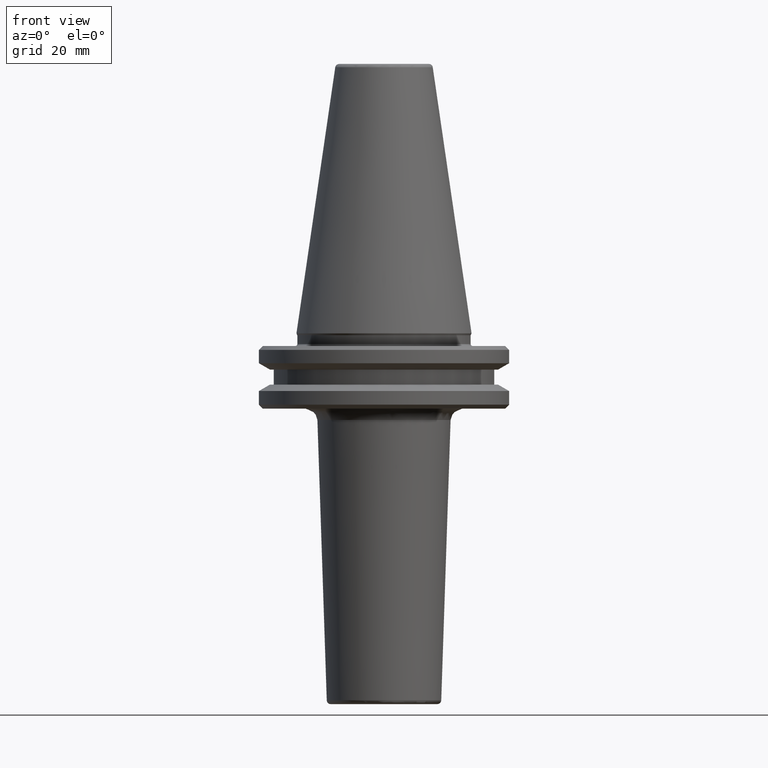
[diagram: clean part render]
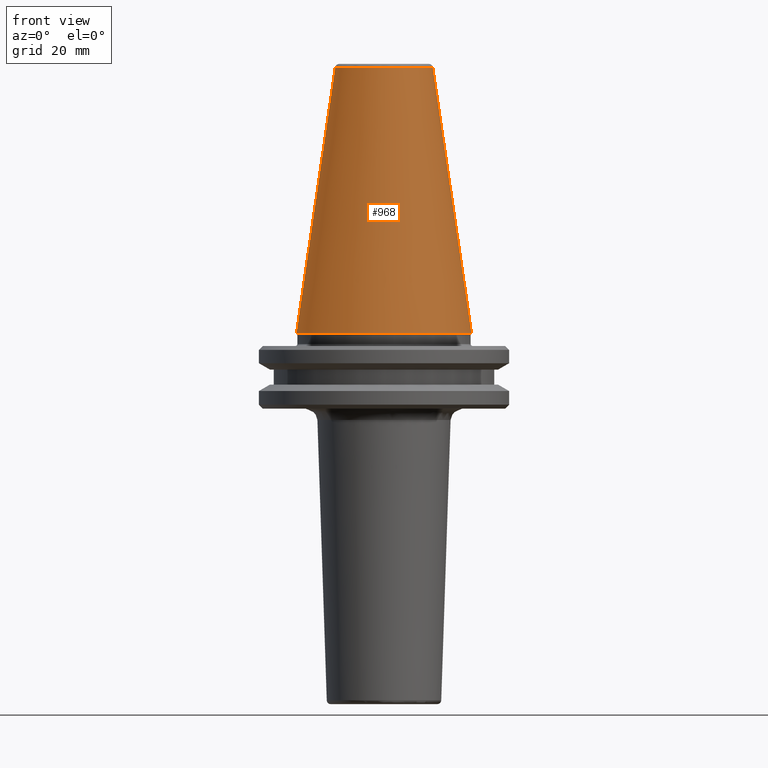
[diagram: same view with one face highlighted and labeled with its STEP entity id]
A machine part, front view. The second image highlights one B-rep face of the part: STEP entity #968.
In plain terms, the highlighted conical surface has half-angle 8.297 deg.
Its self-contained STEP definition (entity closure, byte-faithful):
#44 = DIRECTION ( 'NONE',  ( 0.0000000000000000000, 0.0000000000000000000, -1.000000000000000000 ) ) ;
#52 = DIRECTION ( 'NONE',  ( -1.000000000000000000, 0.0000000000000000000, 0.0000000000000000000 ) ) ;
#96 = CARTESIAN_POINT ( 'NONE',  ( 22.22500000000000100, 2.721777511104992800E-015, 0.0000000000000000000 ) ) ;
#142 = CONICAL_SURFACE ( 'NONE', #591, 22.22500000000000100, 0.1448138465474190500 ) ;
#153 = EDGE_CURVE ( 'NONE', #1513, #886, #702, .T. ) ;
#220 = VECTOR ( 'NONE', #914, 1000.000000000000000 ) ;
#385 = CARTESIAN_POINT ( 'NONE',  ( 0.0000000000000000000, 0.0000000000000000000, 67.54430822726729400 ) ) ;
#388 = CARTESIAN_POINT ( 'NONE',  ( -22.22500000000000500, 2.721777511104993200E-015, 0.0000000000000000000 ) ) ;
#429 = EDGE_CURVE ( 'NONE', #1405, #1513, #1050, .T. ) ;
#466 = EDGE_LOOP ( 'NONE', ( #1217, #1143, #1145, #1390 ) ) ;
#591 = AXIS2_PLACEMENT_3D ( 'NONE', #1446, #1438, #1431 ) ;
#608 = CIRCLE ( 'NONE', #1060, 22.22500000000000100 ) ;
#702 = LINE ( 'NONE', #950, #1243 ) ;
#744 = EDGE_CURVE ( 'NONE', #1405, #906, #747, .T. ) ;
#747 = LINE ( 'NONE', #96, #220 ) ;
#886 = VERTEX_POINT ( 'NONE', #388 ) ;
#906 = VERTEX_POINT ( 'NONE', #942 ) ;
#914 = DIRECTION ( 'NONE',  ( 0.1443082272673070500, 1.767266086135363700E-017, -0.9895327864921743500 ) ) ;
#942 = CARTESIAN_POINT ( 'NONE',  ( 22.22500000000000500, 0.0000000000000000000, 0.0000000000000000000 ) ) ;
#950 = CARTESIAN_POINT ( 'NONE',  ( -22.22500000000000100, 0.0000000000000000000, 0.0000000000000000000 ) ) ;
#956 = DIRECTION ( 'NONE',  ( -1.000000000000000000, 0.0000000000000000000, 6.244223985518314900E-016 ) ) ;
#963 = DIRECTION ( 'NONE',  ( -0.0000000000000000000, -0.0000000000000000000, 1.000000000000000000 ) ) ;
#968 = ADVANCED_FACE ( 'NONE', ( #1306 ), #142, .T. ) ;
#971 = DIRECTION ( 'NONE',  ( -0.1443082272673070500, 0.0000000000000000000, -0.9895327864921743500 ) ) ;
#1041 = CARTESIAN_POINT ( 'NONE',  ( -12.37469537611110800, 0.0000000000000000000, 67.54430822726729400 ) ) ;
#1050 = CIRCLE ( 'NONE', #1053, 12.37469537611110800 ) ;
#1053 = AXIS2_PLACEMENT_3D ( 'NONE', #385, #44, #52 ) ;
#1060 = AXIS2_PLACEMENT_3D ( 'NONE', #1066, #963, #956 ) ;
#1066 = CARTESIAN_POINT ( 'NONE',  ( 0.0000000000000000000, 0.0000000000000000000, 0.0000000000000000000 ) ) ;
#1143 = ORIENTED_EDGE ( 'NONE', *, *, #429, .T. ) ;
#1145 = ORIENTED_EDGE ( 'NONE', *, *, #153, .T. ) ;
#1186 = CARTESIAN_POINT ( 'NONE',  ( 12.37469537611110800, 2.118620309691396900E-015, 67.54430822726729400 ) ) ;
#1217 = ORIENTED_EDGE ( 'NONE', *, *, #744, .F. ) ;
#1243 = VECTOR ( 'NONE', #971, 1000.000000000000000 ) ;
#1306 = FACE_OUTER_BOUND ( 'NONE', #466, .T. ) ;
#1307 = EDGE_CURVE ( 'NONE', #886, #906, #608, .T. ) ;
#1390 = ORIENTED_EDGE ( 'NONE', *, *, #1307, .T. ) ;
#1405 = VERTEX_POINT ( 'NONE', #1186 ) ;
#1431 = DIRECTION ( 'NONE',  ( -1.000000000000000000, 0.0000000000000000000, 0.0000000000000000000 ) ) ;
#1438 = DIRECTION ( 'NONE',  ( 0.0000000000000000000, 0.0000000000000000000, -1.000000000000000000 ) ) ;
#1446 = CARTESIAN_POINT ( 'NONE',  ( 0.0000000000000000000, 0.0000000000000000000, 0.0000000000000000000 ) ) ;
#1513 = VERTEX_POINT ( 'NONE', #1041 ) ;